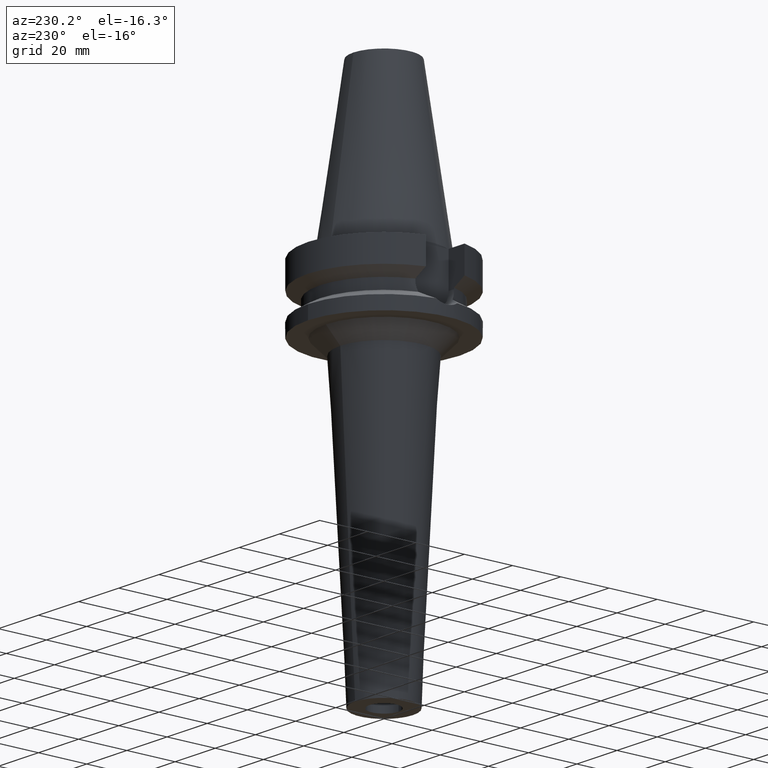
[diagram: clean part render]
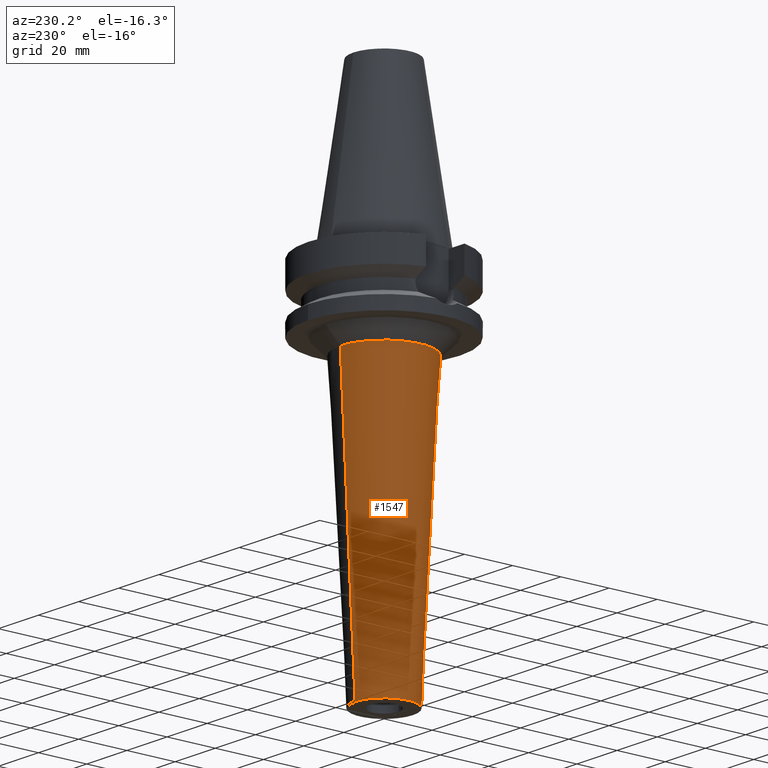
[diagram: same view with one face highlighted and labeled with its STEP entity id]
A machine part, auxiliary view. The second image highlights one B-rep face of the part: STEP entity #1547.
In plain terms, the highlighted conical surface has half-angle 3 deg.
Its self-contained STEP definition (entity closure, byte-faithful):
#661=CARTESIAN_POINT('',(0.E0,0.E0,-3.3E1));
#662=DIRECTION('',(0.E0,0.E0,-1.E0));
#663=DIRECTION('',(0.E0,-1.E0,0.E0));
#664=AXIS2_PLACEMENT_3D('',#661,#662,#663);
#676=DIRECTION('',(0.E0,-5.233595624296E-2,-9.986295347546E-1));
#677=VECTOR('',#676,1.171605644818E2);
#678=CARTESIAN_POINT('',(0.E0,1.813171017612E1,-3.3E1));
#679=LINE('',#678,#677);
#691=DIRECTION('',(0.E0,5.233595624296E-2,-9.986295347546E-1));
#692=VECTOR('',#691,1.171605644818E2);
#693=CARTESIAN_POINT('',(0.E0,-1.813171017612E1,-3.3E1));
#694=LINE('',#693,#692);
#706=CARTESIAN_POINT('',(0.E0,0.E0,-1.5E2));
#707=DIRECTION('',(0.E0,0.E0,1.E0));
#708=DIRECTION('',(0.E0,1.E0,0.E0));
#709=AXIS2_PLACEMENT_3D('',#706,#707,#708);
#952=CARTESIAN_POINT('',(0.E0,-1.2E1,-1.5E2));
#953=CARTESIAN_POINT('',(0.E0,1.2E1,-1.5E2));
#954=VERTEX_POINT('',#952);
#955=VERTEX_POINT('',#953);
#956=CARTESIAN_POINT('',(0.E0,1.813171017612E1,-3.3E1));
#957=VERTEX_POINT('',#956);
#958=CARTESIAN_POINT('',(0.E0,-1.813171017612E1,-3.3E1));
#959=VERTEX_POINT('',#958);
#1535=CARTESIAN_POINT('',(0.E0,0.E0,-9.15E1));
#1536=DIRECTION('',(0.E0,0.E0,1.E0));
#1537=DIRECTION('',(0.E0,1.E0,0.E0));
#1538=AXIS2_PLACEMENT_3D('',#1535,#1536,#1537);
#1539=CONICAL_SURFACE('',#1538,1.506585508806E1,3.E0);
#1540=ORIENTED_EDGE('',*,*,#1525,.F.);
#1541=ORIENTED_EDGE('',*,*,#1502,.F.);
#1542=ORIENTED_EDGE('',*,*,#1529,.T.);
#1544=ORIENTED_EDGE('',*,*,#1543,.F.);
#1545=EDGE_LOOP('',(#1540,#1541,#1542,#1544));
#1546=FACE_OUTER_BOUND('',#1545,.F.);
#665=CIRCLE('',#664,1.813171017612E1);
#710=CIRCLE('',#709,1.2E1);
#1502=EDGE_CURVE('',#959,#957,#665,.T.);
#1525=EDGE_CURVE('',#957,#955,#679,.T.);
#1529=EDGE_CURVE('',#959,#954,#694,.T.);
#1543=EDGE_CURVE('',#955,#954,#710,.T.);
#1547=ADVANCED_FACE('',(#1546),#1539,.T.);